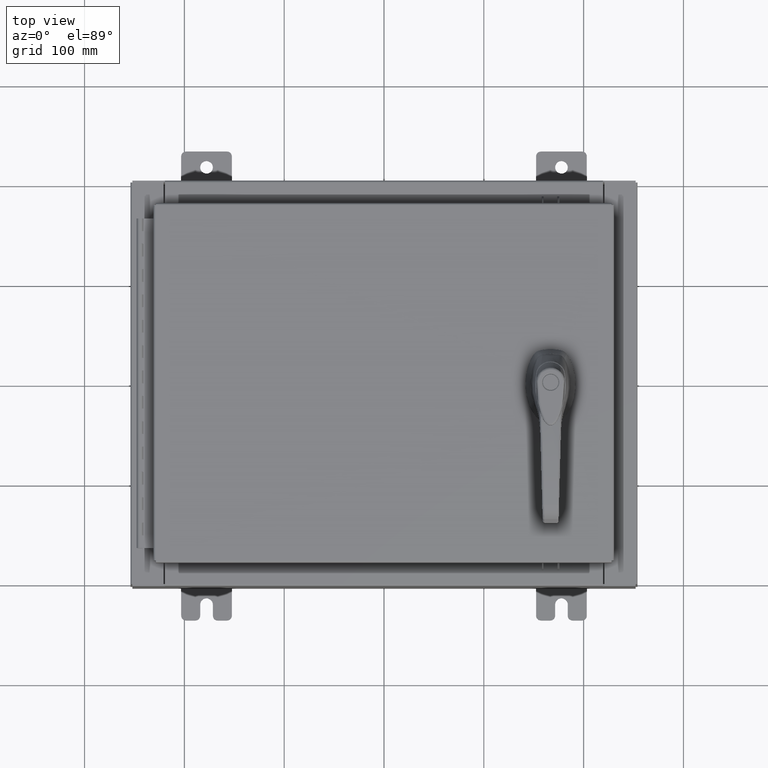
[diagram: clean part render]
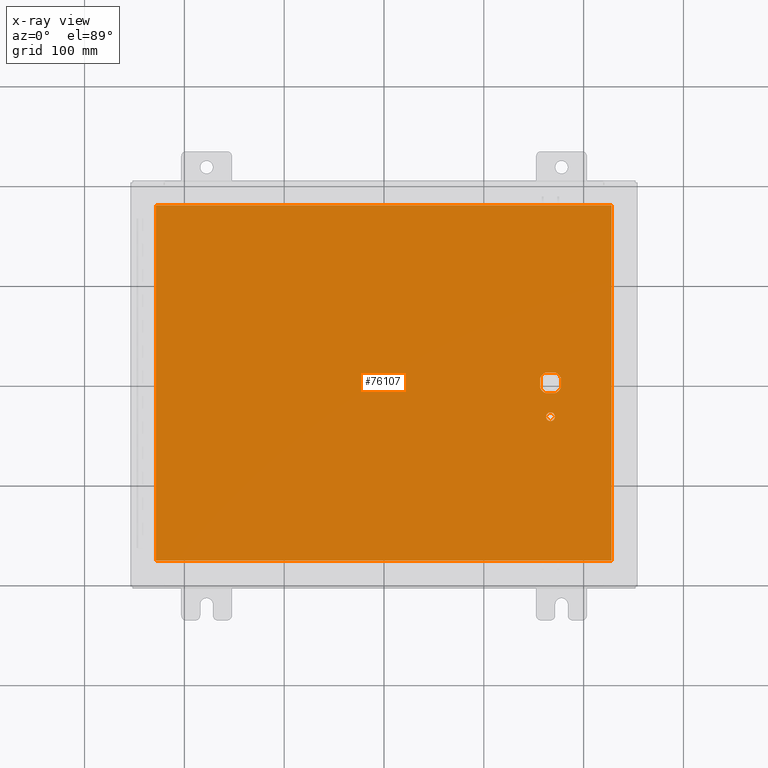
[diagram: x-ray — body ghosted, one internal face saturated and labeled with its STEP entity id]
A machine part, top view, then the same camera in x-ray: the body is ghosted and one INTERNAL B-rep face — a face not visible from any outside direction — is saturated and labeled: STEP entity #76107.
In plain terms, the highlighted planar face has unit normal (0, 0, -1).
Its self-contained STEP definition (entity closure, byte-faithful):
#479 = VERTEX_POINT ( 'NONE', #5034 ) ;
#1305 = VERTEX_POINT ( 'NONE', #94403 ) ;
#1480 = CARTESIAN_POINT ( 'NONE',  ( -8.990299999999996000, -7.006299999999998600, -0.07470000000000000300 ) ) ;
#2516 = DIRECTION ( 'NONE',  ( -1.000000000000000000, 8.881784197001256300E-016, 0.0000000000000000000 ) ) ;
#3766 = ORIENTED_EDGE ( 'NONE', *, *, #56607, .T. ) ;
#4557 = AXIS2_PLACEMENT_3D ( 'NONE', #85368, #36434, #93609 ) ;
#5034 = CARTESIAN_POINT ( 'NONE',  ( 8.990299999999999500, -7.006299999999998600, -0.07470000000000000300 ) ) ;
#5209 = CIRCLE ( 'NONE', #4557, 0.4499999999999156900 ) ;
#5799 = AXIS2_PLACEMENT_3D ( 'NONE', #47688, #104867, #55894 ) ;
#6578 = EDGE_CURVE ( 'NONE', #8673, #479, #105215, .T. ) ;
#7203 = LINE ( 'NONE', #33095, #45639 ) ;
#7514 = CIRCLE ( 'NONE', #56269, 0.1715000000000011500 ) ;
#7967 = DIRECTION ( 'NONE',  ( 1.000000000000000000, -0.0000000000000000000, -0.0000000000000000000 ) ) ;
#8149 = CARTESIAN_POINT ( 'NONE',  ( -8.990299999999999500, 7.006300000000001300, -0.07470000000000183400 ) ) ;
#8583 = CARTESIAN_POINT ( 'NONE',  ( 8.990300000000001300, 7.006300000000001300, -0.07470000000000021100 ) ) ;
#8673 = VERTEX_POINT ( 'NONE', #1480 ) ;
#8813 = VERTEX_POINT ( 'NONE', #69295 ) ;
#9117 = CARTESIAN_POINT ( 'NONE',  ( 6.749500000000001200, -1.338000000000000100, -0.07470000000000003000 ) ) ;
#10415 = AXIS2_PLACEMENT_3D ( 'NONE', #97517, #48567, #105724 ) ;
#11423 = AXIS2_PLACEMENT_3D ( 'NONE', #41730, #98893, #49973 ) ;
#11440 = CARTESIAN_POINT ( 'NONE',  ( 6.175000000000073500, -0.2002273707563079800, -0.07470000000000003000 ) ) ;
#11876 = VECTOR ( 'NONE', #63203, 39.37007874015748100 ) ;
#14177 = CARTESIAN_POINT ( 'NONE',  ( 8.990299999999999500, -7.006299999999998600, -0.07470000000000076600 ) ) ;
#15175 = CARTESIAN_POINT ( 'NONE',  ( 6.980999999999925300, -0.2002273707563075900, -0.07470000000000003000 ) ) ;
#15330 = VERTEX_POINT ( 'NONE', #28533 ) ;
#15657 = EDGE_CURVE ( 'NONE', #86888, #8813, #95803, .T. ) ;
#17256 = DIRECTION ( 'NONE',  ( -0.0000000000000000000, -0.0000000000000000000, 1.000000000000000000 ) ) ;
#19603 = CARTESIAN_POINT ( 'NONE',  ( -8.990299999999997700, 7.006300000000000400, -0.07470000000000000300 ) ) ;
#22113 = CARTESIAN_POINT ( 'NONE',  ( 6.980999999999925300, 0.2002273707563080300, -0.07470000000000003000 ) ) ;
#23277 = LINE ( 'NONE', #8149, #105198 ) ;
#23709 = VECTOR ( 'NONE', #57951, 39.37007874015748100 ) ;
#23720 = CARTESIAN_POINT ( 'NONE',  ( 6.778227370756309400, 0.4029999999999250300, -0.07470000000000003000 ) ) ;
#23908 = CARTESIAN_POINT ( 'NONE',  ( 6.377772629243690300, 0.4029999999999252000, -0.07470000000000003000 ) ) ;
#25265 = VECTOR ( 'NONE', #47253, 39.37007874015748100 ) ;
#26036 = EDGE_LOOP ( 'NONE', ( #93973, #72795, #53824, #56218, #33281, #66825, #60047, #3766 ) ) ;
#28533 = CARTESIAN_POINT ( 'NONE',  ( 6.175000000000073500, 0.2002273707563080300, -0.07470000000000003000 ) ) ;
#31412 = ORIENTED_EDGE ( 'NONE', *, *, #73476, .F. ) ;
#32741 = ORIENTED_EDGE ( 'NONE', *, *, #68153, .F. ) ;
#33095 = CARTESIAN_POINT ( 'NONE',  ( 0.0000000000000000000, -0.4029999999999252000, -0.07470000000000003000 ) ) ;
#33281 = ORIENTED_EDGE ( 'NONE', *, *, #85864, .T. ) ;
#35040 = DIRECTION ( 'NONE',  ( 0.0000000000000000000, 0.0000000000000000000, -1.000000000000000000 ) ) ;
#35816 = EDGE_CURVE ( 'NONE', #39436, #1305, #61277, .T. ) ;
#36434 = DIRECTION ( 'NONE',  ( -0.0000000000000000000, -0.0000000000000000000, 1.000000000000000000 ) ) ;
#37877 = VERTEX_POINT ( 'NONE', #48058 ) ;
#38560 = CARTESIAN_POINT ( 'NONE',  ( 8.990299999999997700, 7.006300000000001300, -0.07470000000000000300 ) ) ;
#39436 = VERTEX_POINT ( 'NONE', #11440 ) ;
#41505 = AXIS2_PLACEMENT_3D ( 'NONE', #100438, #51528, #2516 ) ;
#41730 = CARTESIAN_POINT ( 'NONE',  ( 6.577999999999999400, 0.0000000000000000000, -0.07470000000000003000 ) ) ;
#42915 = CARTESIAN_POINT ( 'NONE',  ( 0.0000000000000000000, 0.0000000000000000000, -0.07470000000000000300 ) ) ;
#43165 = FACE_BOUND ( 'NONE', #26036, .T. ) ;
#44353 = LINE ( 'NONE', #8583, #101874 ) ;
#45639 = VECTOR ( 'NONE', #98537, 39.37007874015748100 ) ;
#45737 = VECTOR ( 'NONE', #99746, 39.37007874015748100 ) ;
#46325 = VERTEX_POINT ( 'NONE', #22113 ) ;
#47253 = DIRECTION ( 'NONE',  ( 2.728745808672813300E-015, -1.000000000000000000, 0.0000000000000000000 ) ) ;
#47688 = CARTESIAN_POINT ( 'NONE',  ( 6.577999999999999400, 0.0000000000000000000, -0.07470000000000003000 ) ) ;
#48058 = CARTESIAN_POINT ( 'NONE',  ( 6.778227370756309400, -0.4029999999999252000, -0.07470000000000003000 ) ) ;
#48567 = DIRECTION ( 'NONE',  ( -0.0000000000000000000, -0.0000000000000000000, 1.000000000000000000 ) ) ;
#49579 = VERTEX_POINT ( 'NONE', #23908 ) ;
#49973 = DIRECTION ( 'NONE',  ( -1.000000000000000000, 0.0000000000000000000, 0.0000000000000000000 ) ) ;
#50276 = VECTOR ( 'NONE', #7967, 39.37007874015748100 ) ;
#50822 = CARTESIAN_POINT ( 'NONE',  ( 0.0000000000000000000, 0.4029999999999252000, -0.07470000000000003000 ) ) ;
#51528 = DIRECTION ( 'NONE',  ( -0.0000000000000000000, -0.0000000000000000000, 1.000000000000000000 ) ) ;
#53824 = ORIENTED_EDGE ( 'NONE', *, *, #86816, .T. ) ;
#55894 = DIRECTION ( 'NONE',  ( -1.000000000000000000, 1.776356839400251300E-015, 0.0000000000000000000 ) ) ;
#56218 = ORIENTED_EDGE ( 'NONE', *, *, #76020, .T. ) ;
#56269 = AXIS2_PLACEMENT_3D ( 'NONE', #66293, #17256, #74519 ) ;
#56607 = EDGE_CURVE ( 'NONE', #1305, #37877, #7203, .T. ) ;
#57951 = DIRECTION ( 'NONE',  ( 0.0000000000000000000, -1.000000000000000000, 0.0000000000000000000 ) ) ;
#58478 = CIRCLE ( 'NONE', #5799, 0.4499999999999156900 ) ;
#59273 = VERTEX_POINT ( 'NONE', #23720 ) ;
#60047 = ORIENTED_EDGE ( 'NONE', *, *, #35816, .T. ) ;
#61277 = CIRCLE ( 'NONE', #41505, 0.4499999999999156900 ) ;
#63203 = DIRECTION ( 'NONE',  ( 0.0000000000000000000, 1.000000000000000000, 0.0000000000000000000 ) ) ;
#66293 = CARTESIAN_POINT ( 'NONE',  ( 6.577999999999999400, -1.338000000000000100, -0.07470000000000003000 ) ) ;
#66825 = ORIENTED_EDGE ( 'NONE', *, *, #97747, .T. ) ;
#67037 = EDGE_CURVE ( 'NONE', #37877, #93604, #58478, .T. ) ;
#67449 = LINE ( 'NONE', #50822, #45737 ) ;
#67563 = PLANE ( 'NONE',  #91199 ) ;
#67795 = CIRCLE ( 'NONE', #11423, 0.4499999999999156900 ) ;
#68153 = EDGE_CURVE ( 'NONE', #101989, #94424, #44353, .T. ) ;
#68745 = ORIENTED_EDGE ( 'NONE', *, *, #6578, .F. ) ;
#69295 = CARTESIAN_POINT ( 'NONE',  ( 6.406499999999998500, -1.338000000000000100, -0.07470000000000003000 ) ) ;
#71973 = EDGE_LOOP ( 'NONE', ( #31412, #68745, #88903, #32741 ) ) ;
#72795 = ORIENTED_EDGE ( 'NONE', *, *, #95411, .F. ) ;
#73476 = EDGE_CURVE ( 'NONE', #479, #101989, #101469, .T. ) ;
#74519 = DIRECTION ( 'NONE',  ( -1.000000000000000000, 0.0000000000000000000, 0.0000000000000000000 ) ) ;
#74767 = EDGE_CURVE ( 'NONE', #94424, #8673, #23277, .T. ) ;
#75137 = ORIENTED_EDGE ( 'NONE', *, *, #93785, .T. ) ;
#76020 = EDGE_CURVE ( 'NONE', #59273, #49579, #67449, .T. ) ;
#76107 = ADVANCED_FACE ( 'NONE', ( #89214, #86640, #43165 ), #67563, .T. ) ;
#85340 = EDGE_LOOP ( 'NONE', ( #85731, #75137 ) ) ;
#85368 = CARTESIAN_POINT ( 'NONE',  ( 6.577999999999999400, 0.0000000000000000000, -0.07470000000000003000 ) ) ;
#85406 = LINE ( 'NONE', #88329, #25265 ) ;
#85731 = ORIENTED_EDGE ( 'NONE', *, *, #15657, .T. ) ;
#85864 = EDGE_CURVE ( 'NONE', #49579, #15330, #5209, .T. ) ;
#86640 = FACE_OUTER_BOUND ( 'NONE', #71973, .T. ) ;
#86816 = EDGE_CURVE ( 'NONE', #46325, #59273, #67795, .T. ) ;
#86888 = VERTEX_POINT ( 'NONE', #9117 ) ;
#88329 = CARTESIAN_POINT ( 'NONE',  ( 6.980999999999925300, 1.904937449034470600E-014, -0.07470000000000003000 ) ) ;
#88903 = ORIENTED_EDGE ( 'NONE', *, *, #74767, .F. ) ;
#89214 = FACE_BOUND ( 'NONE', #85340, .T. ) ;
#89728 = DIRECTION ( 'NONE',  ( 0.0000000000000000000, -1.000000000000000000, 0.0000000000000000000 ) ) ;
#90504 = DIRECTION ( 'NONE',  ( -1.000000000000000000, -0.0000000000000000000, -0.0000000000000000000 ) ) ;
#91199 = AXIS2_PLACEMENT_3D ( 'NONE', #42915, #35040, #92235 ) ;
#92235 = DIRECTION ( 'NONE',  ( -1.000000000000000000, 0.0000000000000000000, -0.0000000000000000000 ) ) ;
#93604 = VERTEX_POINT ( 'NONE', #15175 ) ;
#93609 = DIRECTION ( 'NONE',  ( -1.000000000000000000, 0.0000000000000000000, 0.0000000000000000000 ) ) ;
#93785 = EDGE_CURVE ( 'NONE', #8813, #86888, #7514, .T. ) ;
#93973 = ORIENTED_EDGE ( 'NONE', *, *, #67037, .T. ) ;
#94403 = CARTESIAN_POINT ( 'NONE',  ( 6.377772629243690300, -0.4029999999999250300, -0.07470000000000003000 ) ) ;
#94424 = VERTEX_POINT ( 'NONE', #19603 ) ;
#95411 = EDGE_CURVE ( 'NONE', #46325, #93604, #85406, .T. ) ;
#95803 = CIRCLE ( 'NONE', #10415, 0.1715000000000011500 ) ;
#97517 = CARTESIAN_POINT ( 'NONE',  ( 6.577999999999999400, -1.338000000000000100, -0.07470000000000003000 ) ) ;
#97747 = EDGE_CURVE ( 'NONE', #15330, #39436, #105620, .T. ) ;
#97749 = CARTESIAN_POINT ( 'NONE',  ( -8.990299999999997700, -7.006299999999998600, -0.07469999999999966900 ) ) ;
#98537 = DIRECTION ( 'NONE',  ( 1.000000000000000000, 0.0000000000000000000, 0.0000000000000000000 ) ) ;
#98712 = CARTESIAN_POINT ( 'NONE',  ( 6.175000000000073500, 0.0000000000000000000, -0.07470000000000003000 ) ) ;
#98893 = DIRECTION ( 'NONE',  ( -0.0000000000000000000, -0.0000000000000000000, 1.000000000000000000 ) ) ;
#99746 = DIRECTION ( 'NONE',  ( -1.000000000000000000, 0.0000000000000000000, 0.0000000000000000000 ) ) ;
#100438 = CARTESIAN_POINT ( 'NONE',  ( 6.577999999999999400, 0.0000000000000000000, -0.07470000000000003000 ) ) ;
#101469 = LINE ( 'NONE', #14177, #11876 ) ;
#101874 = VECTOR ( 'NONE', #90504, 39.37007874015748100 ) ;
#101989 = VERTEX_POINT ( 'NONE', #38560 ) ;
#104867 = DIRECTION ( 'NONE',  ( -0.0000000000000000000, -0.0000000000000000000, 1.000000000000000000 ) ) ;
#105198 = VECTOR ( 'NONE', #89728, 39.37007874015748100 ) ;
#105215 = LINE ( 'NONE', #97749, #50276 ) ;
#105620 = LINE ( 'NONE', #98712, #23709 ) ;
#105724 = DIRECTION ( 'NONE',  ( -1.000000000000000000, 0.0000000000000000000, 0.0000000000000000000 ) ) ;